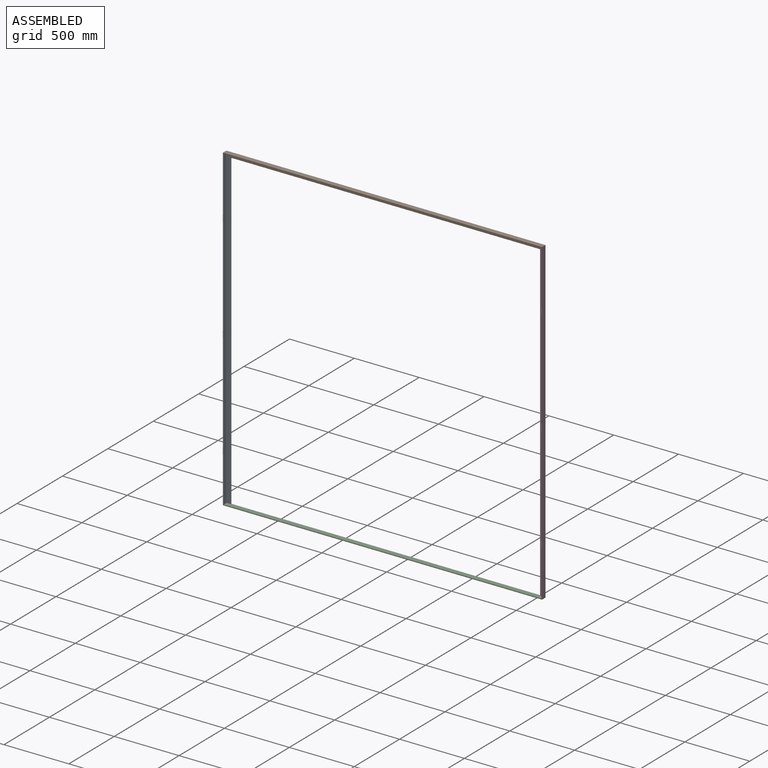
[diagram: assembled view]
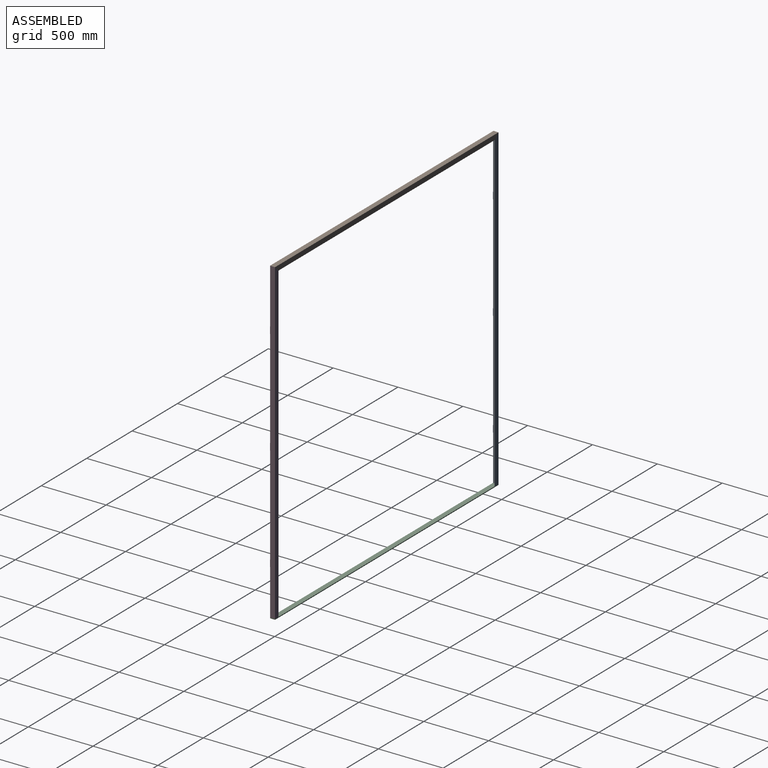
[diagram: assembled view, second angle]
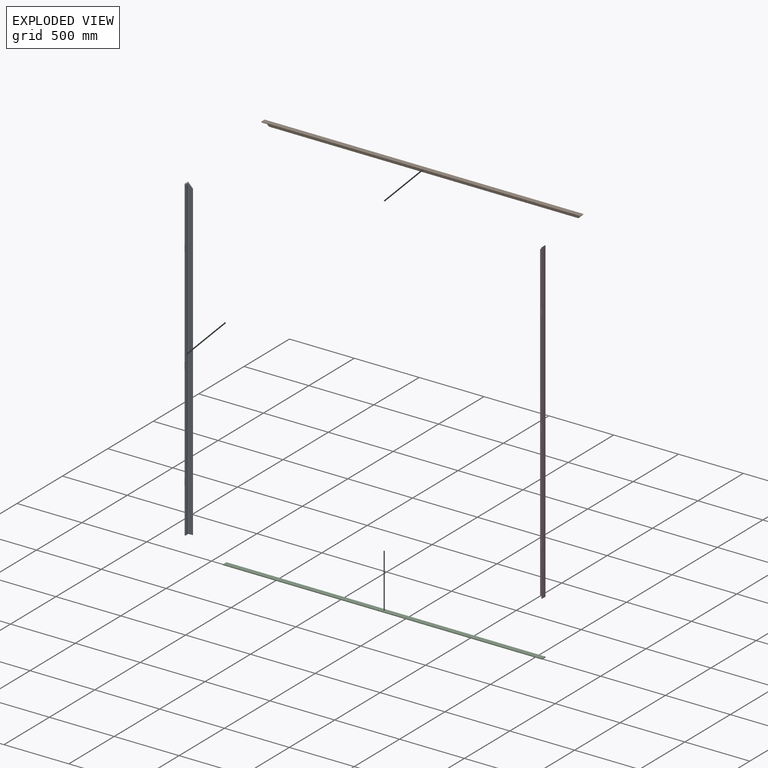
[diagram: exploded view]
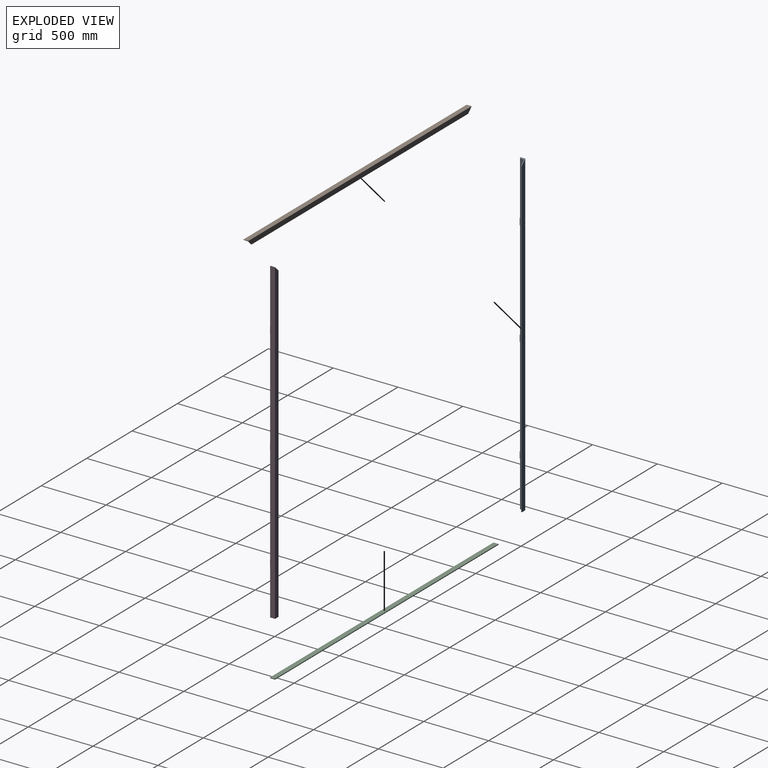
[diagram: exploded view, second angle]
ASSEMBLY  parts=4 mates=3
PART A: 23 faces, bbox 38.1x42.5x2451.1 mm
  f0: plane 50.8x4.39mm, normal (-0.94,-0.35,0), area 238.5mm2, adj f1,f2,f3,f8
  f1: plane 50.8x5.65mm, normal (0.81,-0.59,0), area 354.8mm2, adj f0,f2,f3,f9
  f2: plane 5.76x5.65mm, normal (0,0,1), area 11mm2, adj f0,f1,f8,f9
  f3: plane 5.76x5.65mm, normal (0,0,-1), area 11mm2, adj f0,f1,f8,f9
  f4: plane 50.8x4.39mm, normal (-0.94,-0.35,0), area 238.5mm2, adj f5,f6,f7,f8
  f5: plane 50.8x5.65mm, normal (0.81,-0.59,0), area 354.8mm2, adj f4,f6,f7,f9
  f6: plane 5.76x5.65mm, normal (0,0,1), area 11mm2, adj f4,f5,f8,f9
  f7: plane 5.76x5.65mm, normal (0,0,-1), area 11mm2, adj f4,f5,f8,f9
  f8: plane 2451.1x3.3mm, normal (0,-1,0), area 7586.4mm2, adj f0,f2,f3,f4,f6,f7,f9,f15
  f9: cylinder r=3.05mm len=2447.8mm, axis (0,0,-1), area 11272.5mm2, adj f1,f2,f3,f5,f6,f7,f8,f11
  f10: plane 2451.1x38.1mm, normal (0,1,0), area 92661.1mm2, adj f15,f16,f17,f18
  f11: plane 2444.75x23.62mm, normal (1,0,0), area 57749.9mm2, adj f9,f14,f17,f18
  f12: plane 2439.67x23.62mm, normal (0,-1,0), area 57350.9mm2, adj f13,f14,f17,f18
  f13: cylinder r=3.05mm len=2416.05mm, axis (0,0,-1), area 11558.2mm2, adj f12,f16,f17,f18
  f14: cylinder r=5.08mm len=2444.75mm, axis (0,0,1), area 19493.5mm2, adj f11,f12,f17,f18
  f15: plane 2451.1x38.1mm, normal (-1,0,0), area 93386.9mm2, adj f8,f10,f17,f18
  f16: plane 2413x3.3mm, normal (1,0,0), area 7967.7mm2, adj f10,f13,f17,f18
  f17: plane 38.1x38.1mm, normal (0,0,-1), area 445.1mm2, adj f8,f9,f10,f11,f12,f13,f14,f15
  f18: plane 38.1x38.1mm, normal (0.71,0,0.71), area 629.5mm2, adj f8,f9,f10,f11,f12,f13,f14,f15
  f19: plane 50.8x4.39mm, normal (-0.94,-0.35,0), area 238.5mm2, adj f8,f20,f21,f22
  f20: plane 50.8x5.65mm, normal (0.81,-0.59,0), area 354.8mm2, adj f9,f19,f21,f22
  f21: plane 5.76x5.65mm, normal (0,0,-1), area 11mm2, adj f8,f9,f19,f20
  f22: plane 5.76x5.65mm, normal (0,0,1), area 11mm2, adj f8,f9,f19,f20
PART B: 13 faces, bbox 2460.6x38.1x38.6 mm
  f0: plane 2384.43x3.3mm, normal (0,0,-1), area 7873.4mm2, adj f1,f8,f11,f12
  f1: plane 2460.63x38.1mm, normal (0,1,0), area 92298.2mm2, adj f0,f10,f11,f12
  f2: plane 2460.63x3.3mm, normal (0,-1,0), area 8117mm2, adj f5,f6,f7,f10,f11,f12
  f3: plane 2448.87x23.62mm, normal (0,0,-1), area 57840mm2, adj f7,f9,f11,f12
  f4: plane 2438.71x24.1mm, normal (0,-1,0), area 58180.9mm2, adj f8,f9,f11,f12
  f5: plane 38.1x0.47mm, normal (-1,0,0), area 9mm2, adj f2,f10,f11
  f6: plane 38.1x0.47mm, normal (1,0,0), area 9mm2, adj f2,f10,f12
  f7: cylinder r=3.05mm len=2454.97mm, axis (1,0,0), area 11735.3mm2, adj f2,f3,f11,f12
  f8: cylinder r=3.05mm len=2390.52mm, axis (1,0,0), area 11426.7mm2, adj f0,f4,f11,f12
  f9: cylinder r=5.08mm len=2448.87mm, axis (-1,0,0), area 19511.7mm2, adj f3,f4,f11,f12
  f10: plane 2460.63x38.1mm, normal (0,0.01,1), area 93749.8mm2, adj f1,f2,f5,f6
  f11: plane 38.1x38.1mm, normal (-0.71,0,-0.71), area 608.2mm2, adj f0,f1,f2,f3,f4,f5,f7,f8
  f12: plane 38.1x38.1mm, normal (0.71,0,-0.71), area 608.2mm2, adj f0,f1,f2,f3,f4,f6,f7,f8
PART C: 6 faces, bbox 2460.6x38.1x6.4 mm
  f0: plane 2460.63x38.1mm, normal (0,0,1), area 93749.8mm2, adj f1,f3,f4,f5
  f1: plane 2460.63x6.35mm, normal (0,-1,0), area 15625mm2, adj f0,f2,f4,f5
  f2: plane 2460.63x38.1mm, normal (0,0,-1), area 93749.8mm2, adj f1,f3,f4,f5
  f3: plane 2460.63x6.35mm, normal (0,1,0), area 15625mm2, adj f0,f2,f4,f5
  f4: plane 38.1x6.35mm, normal (-1,0,0), area 241.9mm2, adj f0,f1,f2,f3
  f5: plane 38.1x6.35mm, normal (1,0,0), area 241.9mm2, adj f0,f1,f2,f3
PART D: 26 faces, bbox 38.1x41.3x2451.1 mm
  f0: plane 762x3.19mm, normal (0.04,-1,0), area 2428.5mm2, adj f4,f8,f13,f19
  f1: plane 50.8x3.16mm, normal (0.72,-0.7,0), area 223.9mm2, adj f2,f3,f4,f13
  f2: plane 50.8x4.47mm, normal (-0.85,-0.53,0), area 267.8mm2, adj f1,f3,f4,f19
  f3: plane 5.88x4.47mm, normal (0,0,1), area 8mm2, adj f1,f2,f12,f19
  f4: plane 5.88x4.47mm, normal (0,0,-1), area 8mm2, adj f0,f1,f2,f19
  f5: plane 762x3.19mm, normal (0.04,-1,0), area 2428.5mm2, adj f9,f13,f19,f25
  f6: plane 50.8x3.16mm, normal (0.72,-0.7,0), area 223.9mm2, adj f7,f8,f9,f13
  f7: plane 50.8x4.47mm, normal (-0.85,-0.53,0), area 267.8mm2, adj f6,f8,f9,f19
  f8: plane 5.88x4.47mm, normal (0,0,1), area 8mm2, adj f0,f6,f7,f19
  f9: plane 5.88x4.47mm, normal (0,0,-1), area 8mm2, adj f5,f6,f7,f19
  f10: plane 350.52x3.19mm, normal (0.04,-1,0), area 1117.1mm2, adj f13,f17,f19,f24
  f11: plane 2451.1x38.1mm, normal (0,1,0), area 92661.1mm2, adj f13,f14,f17,f21
  f12: plane 424.18x3.19mm, normal (0.04,-1,0), area 1346.8mm2, adj f3,f13,f19,f21
  f13: plane 2451.1x38.1mm, normal (1,0,0), area 93386.9mm2, adj f0,f1,f5,f6,f10,f11,f12,f17
  f14: plane 2413x3.3mm, normal (-1,0,0), area 7967.7mm2, adj f11,f17,f18,f21
  f15: plane 2439.67x23.63mm, normal (0,-1,0), area 57361.5mm2, adj f17,f18,f20,f21
  f16: plane 2444.75x23.74mm, normal (-1,0,0), area 58043.5mm2, adj f17,f19,f20,f21
  f17: plane 38.22x38.1mm, normal (0,0,-1), area 445.5mm2, adj f10,f11,f13,f14,f15,f16,f18,f19
  f18: cylinder r=3.05mm len=2416.05mm, axis (0,0,-1), area 11558.2mm2, adj f14,f15,f17,f21
  f19: cylinder r=3.05mm len=2447.92mm, axis (0,0,-1), area 11500mm2, adj f0,f2,f3,f4,f5,f7,f8,f9
  f20: cylinder r=5.08mm len=2444.75mm, axis (0,0,1), area 19493.5mm2, adj f15,f16,f17,f21
  f21: plane 38.22x38.1mm, normal (-0.71,0,0.71), area 630.1mm2, adj f11,f12,f13,f14,f15,f16,f18,f19
  f22: plane 50.8x3.16mm, normal (0.72,-0.7,0), area 223.9mm2, adj f13,f23,f24,f25
  f23: plane 50.8x4.47mm, normal (-0.85,-0.53,0), area 267.8mm2, adj f19,f22,f24,f25
  f24: plane 5.88x4.47mm, normal (0,0,-1), area 8mm2, adj f10,f19,f22,f23
  f25: plane 5.88x4.47mm, normal (0,0,1), area 8mm2, adj f5,f19,f22,f23
PLACE A t=(-2377.57,-83.72,-1435.77)mm
PLACE B t=(119.28,-345.8,862.7)mm
PLACE C t=(119.28,-92.19,-1402.46)mm
PLACE D t=(119.28,-63.17,-1435.77)mm
MATE fastened B.f11 <-> A.f18  axis (-0.71,0,-0.71) through (-2341.35,-63.17,1015.33)mm
MATE fastened C.f0 <-> A.f17  axis (0,0,1) through (-2341.35,-63.17,-1435.77)mm
MATE fastened B.f12 <-> D.f21  axis (0.71,0,-0.71) through (119.28,-63.17,1015.33)mm
